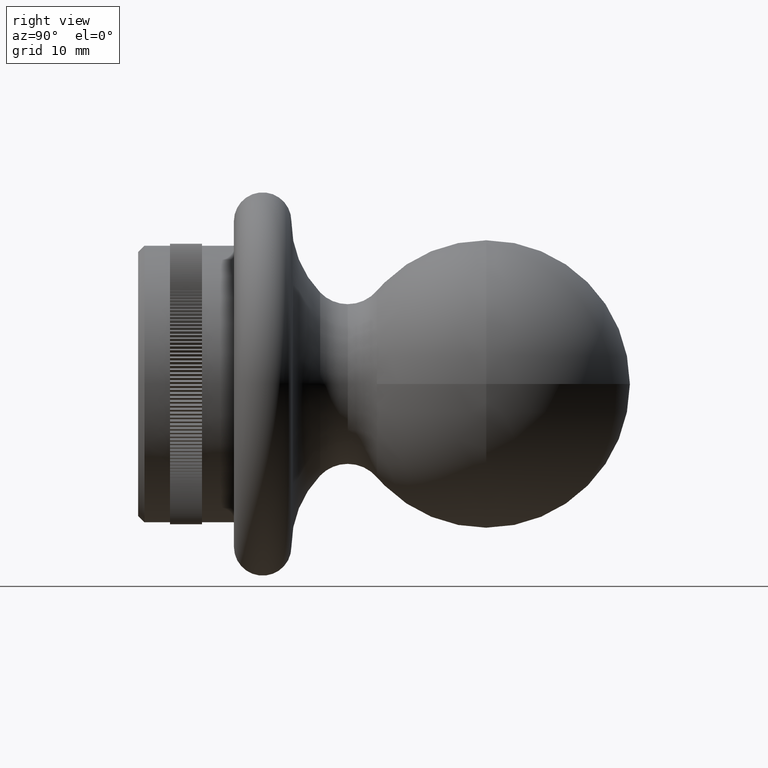
[diagram: clean part render]
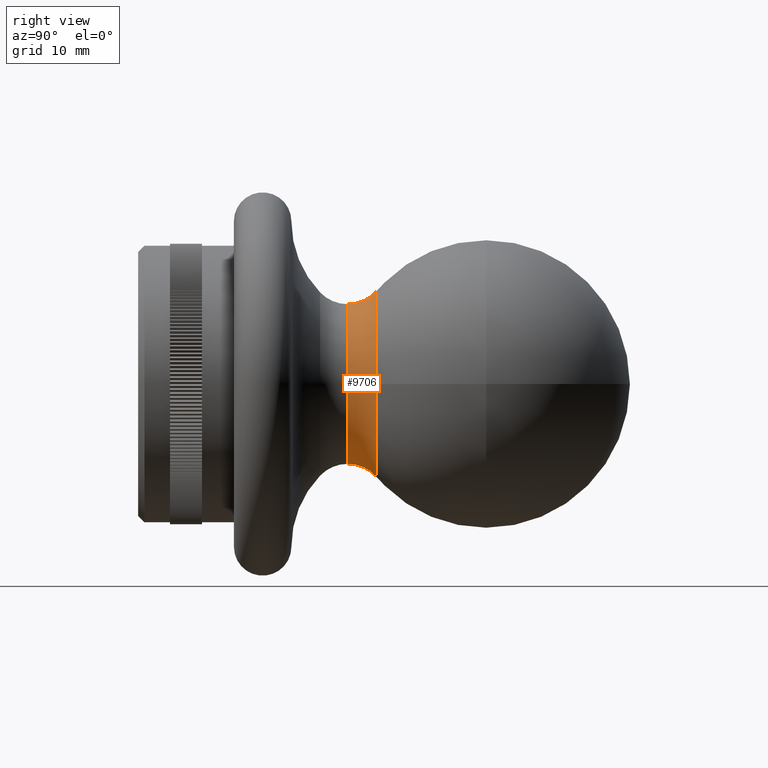
[diagram: same view with one face highlighted and labeled with its STEP entity id]
A machine part, right view. The second image highlights one B-rep face of the part: STEP entity #9706.
In plain terms, the highlighted toroidal blend (fillet) surface has major radius 18.5 mm and minor (blend) radius 6 mm.
Its self-contained STEP definition (entity closure, byte-faithful):
#510 = CARTESIAN_POINT ( 'NONE',  ( 14.60526315789473983, 22.38461837735884785, 0.000000000000000000 ) ) ;
#665 = DIRECTION ( 'NONE',  ( 0.000000000000000000, 0.000000000000000000, -1.000000000000000000 ) ) ;
#1667 = FACE_OUTER_BOUND ( 'NONE', #11469, .T. ) ;
#3734 = EDGE_CURVE ( 'NONE', #15051, #22559, #29326, .T. ) ;
#3767 = EDGE_CURVE ( 'NONE', #7011, #22750, #5255, .T. ) ;
#4973 = CARTESIAN_POINT ( 'NONE',  ( 0.000000000000000000, 22.38461837735884785, 0.000000000000000000 ) ) ;
#5255 = CIRCLE ( 'NONE', #19242, 5.999999999999992895 ) ;
#7011 = VERTEX_POINT ( 'NONE', #17999 ) ;
#7074 = DIRECTION ( 'NONE',  ( -1.000000000000000000, 0.000000000000000000, 0.000000000000000000 ) ) ;
#7358 = ORIENTED_EDGE ( 'NONE', *, *, #3734, .T. ) ;
#7734 = AXIS2_PLACEMENT_3D ( 'NONE', #15217, #27039, #20930 ) ;
#7783 = DIRECTION ( 'NONE',  ( 0.000000000000000000, 0.000000000000000000, -1.000000000000000000 ) ) ;
#8520 = ORIENTED_EDGE ( 'NONE', *, *, #13504, .F. ) ;
#9706 = ADVANCED_FACE ( 'NONE', ( #1667 ), #18755, .F. ) ;
#9843 = ORIENTED_EDGE ( 'NONE', *, *, #29241, .F. ) ;
#11401 = ORIENTED_EDGE ( 'NONE', *, *, #19010, .T. ) ;
#11469 = EDGE_LOOP ( 'NONE', ( #9843, #34163, #11401, #7358, #8520 ) ) ;
#11777 = CARTESIAN_POINT ( 'NONE',  ( 1.788628877702055915E-15, 22.38461837735884785, 14.60526315789474339 ) ) ;
#12447 = CIRCLE ( 'NONE', #19874, 5.999999999999992895 ) ;
#13504 = EDGE_CURVE ( 'NONE', #23973, #22559, #12447, .T. ) ;
#15051 = VERTEX_POINT ( 'NONE', #510 ) ;
#15217 = CARTESIAN_POINT ( 'NONE',  ( 0.000000000000000000, 17.82051661132120657, 0.000000000000000000 ) ) ;
#15497 = CARTESIAN_POINT ( 'NONE',  ( 0.000000000000000000, 22.38461837735884785, 0.000000000000000000 ) ) ;
#15975 = DIRECTION ( 'NONE',  ( 0.000000000000000000, 0.000000000000000000, -1.000000000000000000 ) ) ;
#17999 = CARTESIAN_POINT ( 'NONE',  ( 0.000000000000000000, 17.82051661132120657, -12.50000000000000888 ) ) ;
#18292 = CARTESIAN_POINT ( 'NONE',  ( 1.530808498934192705E-15, 17.82051661132120657, 12.50000000000000888 ) ) ;
#18755 = TOROIDAL_SURFACE ( 'NONE', #7734, 18.50000000000000355, 5.999999999999992895 ) ;
#19010 = EDGE_CURVE ( 'NONE', #22750, #15051, #34581, .T. ) ;
#19242 = AXIS2_PLACEMENT_3D ( 'NONE', #24836, #7074, #33916 ) ;
#19839 = AXIS2_PLACEMENT_3D ( 'NONE', #4973, #28393, #7783 ) ;
#19874 = AXIS2_PLACEMENT_3D ( 'NONE', #29443, #26719, #23858 ) ;
#20930 = DIRECTION ( 'NONE',  ( 0.000000000000000000, 0.000000000000000000, -1.000000000000000000 ) ) ;
#22245 = AXIS2_PLACEMENT_3D ( 'NONE', #36393, #30524, #15975 ) ;
#22559 = VERTEX_POINT ( 'NONE', #11777 ) ;
#22750 = VERTEX_POINT ( 'NONE', #29670 ) ;
#23858 = DIRECTION ( 'NONE',  ( -1.224646799147353207E-16, 0.000000000000000000, -1.000000000000000000 ) ) ;
#23973 = VERTEX_POINT ( 'NONE', #18292 ) ;
#24836 = CARTESIAN_POINT ( 'NONE',  ( 0.000000000000000000, 17.82051661132120657, -18.50000000000000355 ) ) ;
#26719 = DIRECTION ( 'NONE',  ( 1.000000000000000000, 0.000000000000000000, -1.224646799147353207E-16 ) ) ;
#27039 = DIRECTION ( 'NONE',  ( -0.000000000000000000, -1.000000000000000000, -0.000000000000000000 ) ) ;
#28393 = DIRECTION ( 'NONE',  ( -0.000000000000000000, -1.000000000000000000, -0.000000000000000000 ) ) ;
#28643 = CIRCLE ( 'NONE', #22245, 12.50000000000000888 ) ;
#29241 = EDGE_CURVE ( 'NONE', #7011, #23973, #28643, .T. ) ;
#29326 = CIRCLE ( 'NONE', #30655, 14.60526315789473983 ) ;
#29443 = CARTESIAN_POINT ( 'NONE',  ( 2.265596578422603791E-15, 17.82051661132120657, 18.50000000000000355 ) ) ;
#29670 = CARTESIAN_POINT ( 'NONE',  ( 0.000000000000000000, 22.38461837735884785, -14.60526315789474339 ) ) ;
#30524 = DIRECTION ( 'NONE',  ( -0.000000000000000000, -1.000000000000000000, -0.000000000000000000 ) ) ;
#30655 = AXIS2_PLACEMENT_3D ( 'NONE', #15497, #36150, #665 ) ;
#33916 = DIRECTION ( 'NONE',  ( 0.000000000000000000, 0.000000000000000000, 1.000000000000000000 ) ) ;
#34163 = ORIENTED_EDGE ( 'NONE', *, *, #3767, .T. ) ;
#34581 = CIRCLE ( 'NONE', #19839, 14.60526315789473983 ) ;
#36150 = DIRECTION ( 'NONE',  ( -0.000000000000000000, -1.000000000000000000, -0.000000000000000000 ) ) ;
#36393 = CARTESIAN_POINT ( 'NONE',  ( 0.000000000000000000, 17.82051661132120657, 0.000000000000000000 ) ) ;